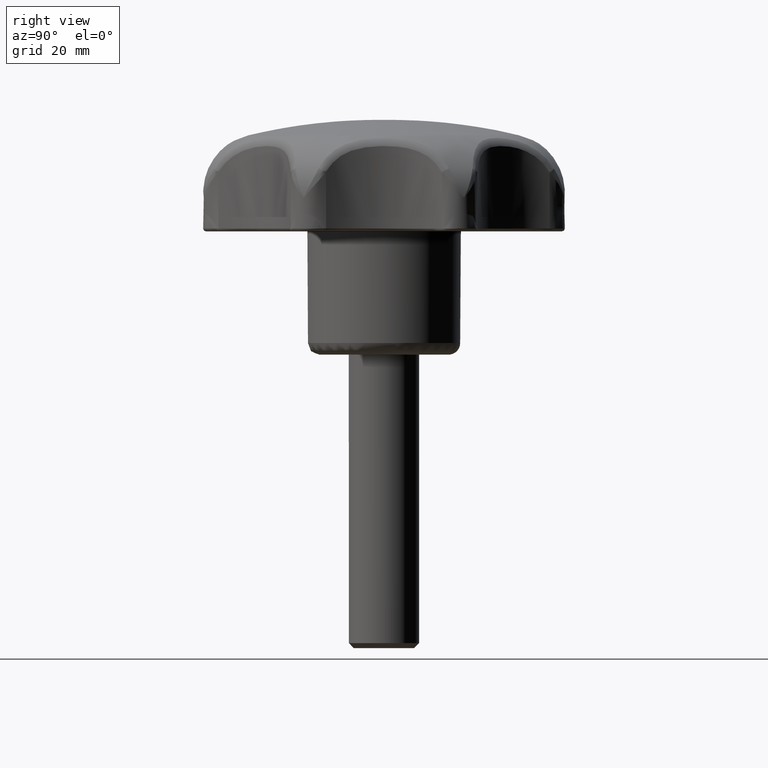
[diagram: clean part render]
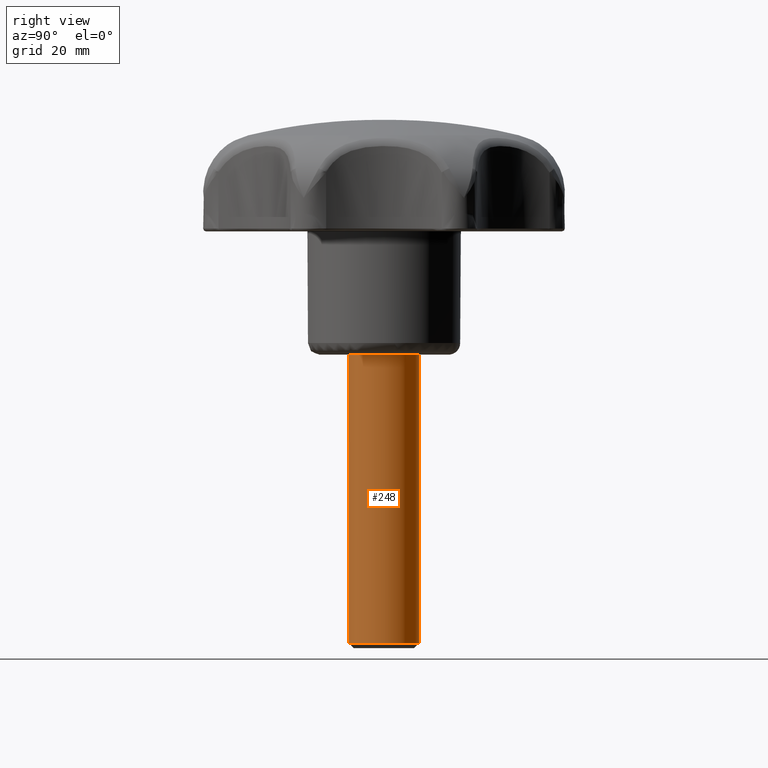
[diagram: same view with one face highlighted and labeled with its STEP entity id]
A machine part, right view. The second image highlights one B-rep face of the part: STEP entity #248.
In plain terms, the highlighted face is a freeform B-spline surface patch.
Its self-contained STEP definition (entity closure, byte-faithful):
#62=CARTESIAN_POINT('',(-0.684603988665352,-5.960815160588650,-49.149999999999999));
#63=VERTEX_POINT('',#62);
#79=CARTESIAN_POINT('',(-0.684603988689609,-5.960815160585863,1.775143E-015));
#80=VERTEX_POINT('',#79);
#81=CARTESIAN_POINT('',(-0.684603988689609,-5.960815160585863,1.775143E-015));
#82=CARTESIAN_POINT('',(-0.684603988665352,-5.960815160588650,-49.149999999999999));
#83=QUASI_UNIFORM_CURVE('',1,(#81,#82),.UNSPECIFIED.,.F.,.U.);
#84=EDGE_CURVE('',#80,#63,#83,.T.);
#101=CARTESIAN_POINT('',(-0.366291237233310,5.988808790529722,1.665335E-015));
#102=VERTEX_POINT('',#101);
#116=CARTESIAN_POINT('',(-0.418522905902383,5.985156396470964,-49.149999999985070));
#117=VERTEX_POINT('',#116);
#118=CARTESIAN_POINT('',(-0.366291237233310,5.988808790529722,1.665335E-015));
#119=CARTESIAN_POINT('',(-0.418522905902383,5.985156396470964,-49.149999999985070));
#120=QUASI_UNIFORM_CURVE('',1,(#118,#119),.UNSPECIFIED.,.F.,.U.);
#121=EDGE_CURVE('',#102,#117,#120,.T.);
#139=CARTESIAN_POINT('',(-0.507201487115700,5.980190350440855,1.228750000000001));
#140=CARTESIAN_POINT('',(-0.437091371251763,5.984478468826149,1.228750000000002));
#141=CARTESIAN_POINT('',(5.622517553322059,6.355100027740342,1.228750000000001));
#142=CARTESIAN_POINT('',(5.988808790531200,0.366291237209142,1.228750000000001));
#143=CARTESIAN_POINT('',(6.355100027740342,-5.622517553322059,1.228750000000001));
#144=CARTESIAN_POINT('',(0.366291237209142,-5.988808790531200,1.228750000000001));
#145=CARTESIAN_POINT('',(-0.160387308579280,-6.021021830368667,1.228750000000002));
#146=CARTESIAN_POINT('',(-0.732487664977086,-5.955315685281833,1.228750000000001));
#147=CARTESIAN_POINT('',(-0.780614134909612,-5.949788324949786,1.228750000000001));
#148=CARTESIAN_POINT('',(-0.507201487115700,5.980190350440855,-50.409468750000016));
#149=CARTESIAN_POINT('',(-0.437091371251763,5.984478468826149,-50.409468750000016));
#150=CARTESIAN_POINT('',(5.622517553322059,6.355100027740342,-50.409468750000023));
#151=CARTESIAN_POINT('',(5.988808790531200,0.366291237209142,-50.409468750000009));
#152=CARTESIAN_POINT('',(6.355100027740342,-5.622517553322059,-50.409468750000023));
#153=CARTESIAN_POINT('',(0.366291237209142,-5.988808790531200,-50.409468750000009));
#154=CARTESIAN_POINT('',(-0.160387308579280,-6.021021830368667,-50.409468750000009));
#155=CARTESIAN_POINT('',(-0.732487664977086,-5.955315685281833,-50.409468750000016));
#156=CARTESIAN_POINT('',(-0.780614134909612,-5.949788324949786,-50.409468750000023));
#164=(BOUNDED_SURFACE()B_SPLINE_SURFACE(2,1,((#139,#148),(#140,#149),(#141,#150),(#142,#151),(#143,#152),(#144,#153),(#145,#154),(#146,#155),(#147,#156)),.UNSPECIFIED.,.F.,.F.,.U.)B_SPLINE_SURFACE_WITH_KNOTS((3,1,2,2,1,3),(2,2),(0.0,0.167022927500092,10.108148424454370,20.049273921408648,21.242208981043159,21.347891610714331),(0.0,51.638218750000007),.UNSPECIFIED.)GEOMETRIC_REPRESENTATION_ITEM()RATIONAL_B_SPLINE_SURFACE(((1.009841920387412,1.009841920387412),(1.004920960193706,1.004920960193706),(0.707106781186548,0.707106781186548),(1.0,1.0),(0.707106781186548,0.707106781186548),(1.0,1.0),(0.964852813742386,0.964852813742386),(0.935774536890285,0.935774536890285),(0.933408121593972,0.933408121593972)))REPRESENTATION_ITEM('')SURFACE());
#165=CARTESIAN_POINT('',(0.470754574595626,-5.981504002410730,-49.149999999970142));
#166=VERTEX_POINT('',#165);
#167=CARTESIAN_POINT('',(0.470754574595627,-5.981504002410730,-49.149999999970142));
#168=CARTESIAN_POINT('',(0.235740642273280,-6.0,-49.149999999999999));
#169=CARTESIAN_POINT('',(0.0,-6.0,-49.149999999999999));
#170=CARTESIAN_POINT('',(-0.343423410377154,-6.000000000000001,-49.149999999999999));
#171=CARTESIAN_POINT('',(-0.684603988665352,-5.960815160588650,-49.149999999999999));
#179=(BOUNDED_CURVE()B_SPLINE_CURVE(2,(#167,#168,#169,#170,#171),.UNSPECIFIED.,.F.,.U.)B_SPLINE_CURVE_WITH_KNOTS((3,2,3),(0.736331300619801,0.750000000000000,0.769767755889283),.UNSPECIFIED.)CURVE()GEOMETRIC_REPRESENTATION_ITEM()RATIONAL_B_SPLINE_CURVE((0.969723356144756,0.983986122566160,1.0,0.976840633395477,0.957343736435664))REPRESENTATION_ITEM(''));
#180=EDGE_CURVE('',#166,#63,#179,.T.);
#181=ORIENTED_EDGE('',*,*,#180,.F.);
#182=CARTESIAN_POINT('',(6.0,0.0,-49.149999999999999));
#183=VERTEX_POINT('',#182);
#184=CARTESIAN_POINT('',(6.0,0.0,-49.149999999999999));
#185=CARTESIAN_POINT('',(6.0,-5.546342949528438,-49.149999999999999));
#186=CARTESIAN_POINT('',(0.470754574595627,-5.981504002410730,-49.149999999970149));
#194=(BOUNDED_CURVE()B_SPLINE_CURVE(2,(#184,#185,#186),.UNSPECIFIED.,.F.,.U.)B_SPLINE_CURVE_WITH_KNOTS((3,3),(0.500000000000000,0.736331300619801),.UNSPECIFIED.)CURVE()GEOMETRIC_REPRESENTATION_ITEM()RATIONAL_B_SPLINE_CURVE((1.0,0.723120658620387,0.969723356144756))REPRESENTATION_ITEM(''));
#195=EDGE_CURVE('',#183,#166,#194,.T.);
#196=ORIENTED_EDGE('',*,*,#195,.F.);
#197=CARTESIAN_POINT('',(-0.418522905902383,5.985156396470964,-49.149999999985070));
#198=CARTESIAN_POINT('',(-0.209508939813709,5.999775805686918,-49.149999999985319));
#199=CARTESIAN_POINT('',(0.000015398933216,5.999779784997302,-49.149999999985582));
#200=CARTESIAN_POINT('',(6.000007430595309,5.999893737537326,-49.149999999993035));
#201=CARTESIAN_POINT('',(6.0,0.0,-49.149999999999999));
#209=(BOUNDED_CURVE()B_SPLINE_CURVE(2,(#197,#198,#199,#200,#201),.UNSPECIFIED.,.F.,.U.)B_SPLINE_CURVE_WITH_KNOTS((3,2,3),(0.237829682993707,0.250000000000000,0.500000000000000),.UNSPECIFIED.)CURVE()GEOMETRIC_REPRESENTATION_ITEM()RATIONAL_B_SPLINE_CURVE((0.972871408702129,0.985741586712187,1.0,0.707106781186548,1.0))REPRESENTATION_ITEM(''));
#210=EDGE_CURVE('',#117,#183,#209,.T.);
#211=ORIENTED_EDGE('',*,*,#210,.F.);
#212=ORIENTED_EDGE('',*,*,#121,.F.);
#213=CARTESIAN_POINT('',(6.0,0.0,0.0));
#214=VERTEX_POINT('',#213);
#215=CARTESIAN_POINT('',(-0.366291237233310,5.988808790529722,1.665335E-015));
#216=CARTESIAN_POINT('',(-0.183316579815769,6.0,0.0));
#217=CARTESIAN_POINT('',(0.0,6.0,0.0));
#218=CARTESIAN_POINT('',(6.0,6.0,0.0));
#219=CARTESIAN_POINT('',(6.0,0.0,0.0));
#227=(BOUNDED_CURVE()B_SPLINE_CURVE(2,(#215,#216,#217,#218,#219),.UNSPECIFIED.,.F.,.U.)B_SPLINE_CURVE_WITH_KNOTS((3,2,3),(0.739332962240576,0.750000000000000,1.0),.UNSPECIFIED.)CURVE()GEOMETRIC_REPRESENTATION_ITEM()RATIONAL_B_SPLINE_CURVE((0.976072041670217,0.987502787901750,1.0,0.707106781186548,1.0))REPRESENTATION_ITEM(''));
#228=EDGE_CURVE('',#102,#214,#227,.T.);
#229=ORIENTED_EDGE('',*,*,#228,.T.);
#230=CARTESIAN_POINT('',(6.0,0.0,0.0));
#231=CARTESIAN_POINT('',(6.0,-6.0,0.0));
#232=CARTESIAN_POINT('',(0.0,-6.0,0.0));
#233=CARTESIAN_POINT('',(-0.343423410401643,-6.000000000000001,0.0));
#234=CARTESIAN_POINT('',(-0.684603988689609,-5.960815160585863,1.775143E-015));
#242=(BOUNDED_CURVE()B_SPLINE_CURVE(2,(#230,#231,#232,#233,#234),.UNSPECIFIED.,.F.,.U.)B_SPLINE_CURVE_WITH_KNOTS((3,2,3),(0.0,0.250000000000000,0.269767755890660),.UNSPECIFIED.)CURVE()GEOMETRIC_REPRESENTATION_ITEM()RATIONAL_B_SPLINE_CURVE((1.0,0.707106781186548,1.0,0.976840633393864,0.957343736432948))REPRESENTATION_ITEM(''));
#243=EDGE_CURVE('',#214,#80,#242,.T.);
#244=ORIENTED_EDGE('',*,*,#243,.T.);
#245=ORIENTED_EDGE('',*,*,#84,.T.);
#246=EDGE_LOOP('',(#181,#196,#211,#212,#229,#244,#245));
#247=FACE_OUTER_BOUND('',#246,.T.);
#248=ADVANCED_FACE('',(#247),#164,.T.);